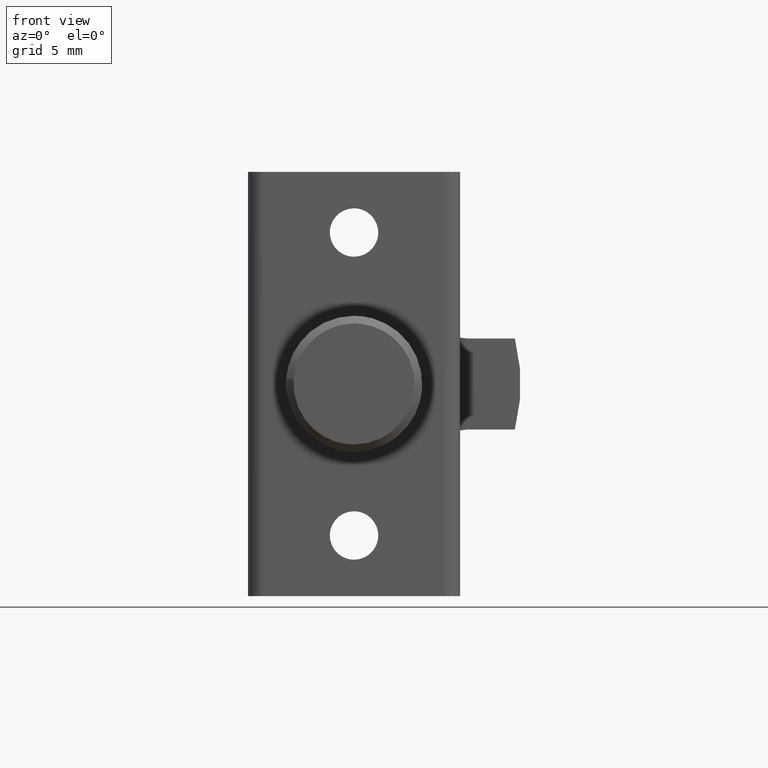
[diagram: clean part render]
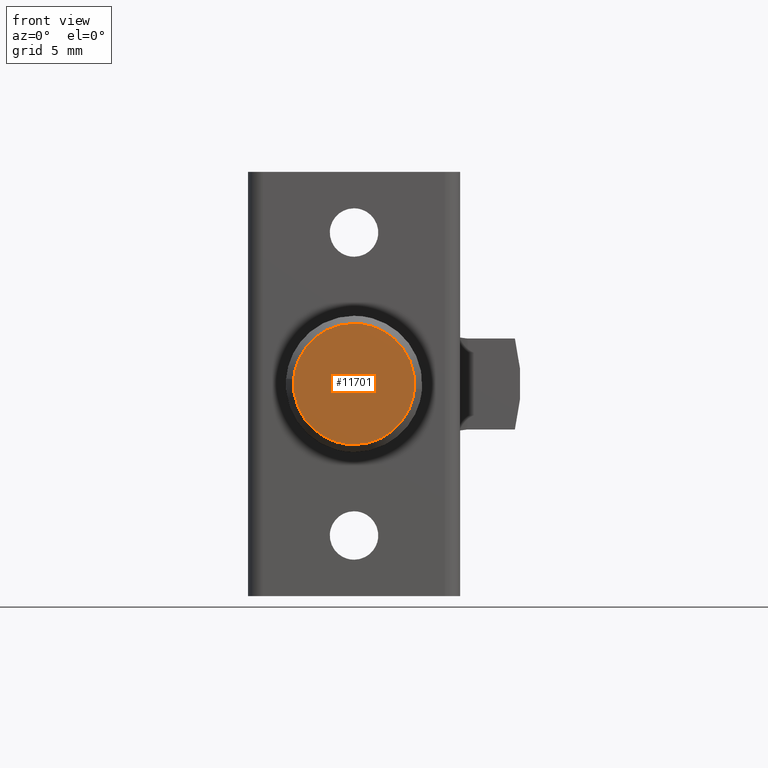
[diagram: same view with one face highlighted and labeled with its STEP entity id]
A machine part, front view. The second image highlights one B-rep face of the part: STEP entity #11701.
In plain terms, the highlighted face is a freeform B-spline surface patch.
Its self-contained STEP definition (entity closure, byte-faithful):
#10121=CARTESIAN_POINT('',(-12.999999999986320,3.987669334937950,0.313836383016665));
#10122=VERTEX_POINT('',#10121);
#10128=CARTESIAN_POINT('',(-13.0,-1.998558E-015,4.0));
#10129=VERTEX_POINT('',#10128);
#10130=CARTESIAN_POINT('',(-13.0,-1.998558E-015,4.0));
#10131=CARTESIAN_POINT('',(-13.000000000000002,3.697561966438970,4.0));
#10132=CARTESIAN_POINT('',(-12.999999999986311,3.987669334937949,0.313836383016665));
#10140=(BOUNDED_CURVE()B_SPLINE_CURVE(2,(#10130,#10131,#10132),.UNSPECIFIED.,.F.,.U.)B_SPLINE_CURVE_WITH_KNOTS((3,3),(0.0,0.236331300623807),.UNSPECIFIED.)CURVE()GEOMETRIC_REPRESENTATION_ITEM()RATIONAL_B_SPLINE_CURVE((1.0,0.723120658615694,0.969723356153117))REPRESENTATION_ITEM(''));
#10141=EDGE_CURVE('',#10129,#10122,#10140,.T.);
#10143=CARTESIAN_POINT('',(-12.999999999986320,-3.987669334937954,-0.313836383016666));
#10144=VERTEX_POINT('',#10143);
#10145=CARTESIAN_POINT('',(-12.999999999986313,-3.987669334937954,-0.313836383016666));
#10146=CARTESIAN_POINT('',(-13.000000000000002,-4.000000000000004,-0.157160428135373));
#10147=CARTESIAN_POINT('',(-13.0,-4.000000000000002,0.0));
#10148=CARTESIAN_POINT('',(-13.000000000000002,-4.000000000000003,4.000000000000000));
#10149=CARTESIAN_POINT('',(-13.0,-1.998558E-015,4.0));
#10157=(BOUNDED_CURVE()B_SPLINE_CURVE(2,(#10145,#10146,#10147,#10148,#10149),.UNSPECIFIED.,.F.,.U.)B_SPLINE_CURVE_WITH_KNOTS((3,2,3),(0.736331300623807,0.750000000000000,1.0),.UNSPECIFIED.)CURVE()GEOMETRIC_REPRESENTATION_ITEM()RATIONAL_B_SPLINE_CURVE((0.969723356153117,0.983986122570854,1.0,0.707106781186548,1.0))REPRESENTATION_ITEM(''));
#10158=EDGE_CURVE('',#10144,#10129,#10157,.T.);
#10192=CARTESIAN_POINT('',(-13.0,-1.998558E-015,-4.0));
#10193=VERTEX_POINT('',#10192);
#10194=CARTESIAN_POINT('',(-13.0,-1.998558E-015,-4.0));
#10195=CARTESIAN_POINT('',(-13.000000000000002,-3.697561966438961,-4.000000000000001));
#10196=CARTESIAN_POINT('',(-12.999999999986318,-3.987669334937954,-0.313836383016665));
#10204=(BOUNDED_CURVE()B_SPLINE_CURVE(2,(#10194,#10195,#10196),.UNSPECIFIED.,.F.,.U.)B_SPLINE_CURVE_WITH_KNOTS((3,3),(0.500000000000000,0.736331300623807),.UNSPECIFIED.)CURVE()GEOMETRIC_REPRESENTATION_ITEM()RATIONAL_B_SPLINE_CURVE((1.0,0.723120658615694,0.969723356153116))REPRESENTATION_ITEM(''));
#10205=EDGE_CURVE('',#10193,#10144,#10204,.T.);
#10207=CARTESIAN_POINT('',(-12.999999999986311,3.987669334937949,0.313836383016665));
#10208=CARTESIAN_POINT('',(-13.0,3.999999999999999,0.157160428135373));
#10209=CARTESIAN_POINT('',(-13.0,3.999999999999998,0.0));
#10210=CARTESIAN_POINT('',(-13.000000000000002,3.999999999999998,-4.000000000000000));
#10211=CARTESIAN_POINT('',(-13.0,-1.998558E-015,-4.0));
#10219=(BOUNDED_CURVE()B_SPLINE_CURVE(2,(#10207,#10208,#10209,#10210,#10211),.UNSPECIFIED.,.F.,.U.)B_SPLINE_CURVE_WITH_KNOTS((3,2,3),(0.236331300623807,0.250000000000000,0.500000000000000),.UNSPECIFIED.)CURVE()GEOMETRIC_REPRESENTATION_ITEM()RATIONAL_B_SPLINE_CURVE((0.969723356153117,0.983986122570854,1.0,0.707106781186548,1.0))REPRESENTATION_ITEM(''));
#10220=EDGE_CURVE('',#10122,#10193,#10219,.T.);
#11690=CARTESIAN_POINT('',(-13.0,-4.398379010907405,-4.399599984494448));
#11691=CARTESIAN_POINT('',(-13.0,-4.398379010907405,4.399600199071169));
#11692=CARTESIAN_POINT('',(-13.0,4.398379225484123,-4.399599984494448));
#11693=CARTESIAN_POINT('',(-13.0,4.398379225484123,4.399600199071169));
#11694=B_SPLINE_SURFACE_WITH_KNOTS('',1,1,((#11690,#11692),(#11691,#11693)),.UNSPECIFIED.,.F.,.F.,.U.,(2,2),(2,2),(0.0,8.799200183565617),(0.0,8.796758236391529),.UNSPECIFIED.);
#11695=ORIENTED_EDGE('',*,*,#10141,.T.);
#11696=ORIENTED_EDGE('',*,*,#10220,.T.);
#11697=ORIENTED_EDGE('',*,*,#10205,.T.);
#11698=ORIENTED_EDGE('',*,*,#10158,.T.);
#11699=EDGE_LOOP('',(#11695,#11696,#11697,#11698));
#11700=FACE_OUTER_BOUND('',#11699,.T.);
#11701=ADVANCED_FACE('',(#11700),#11694,.T.);